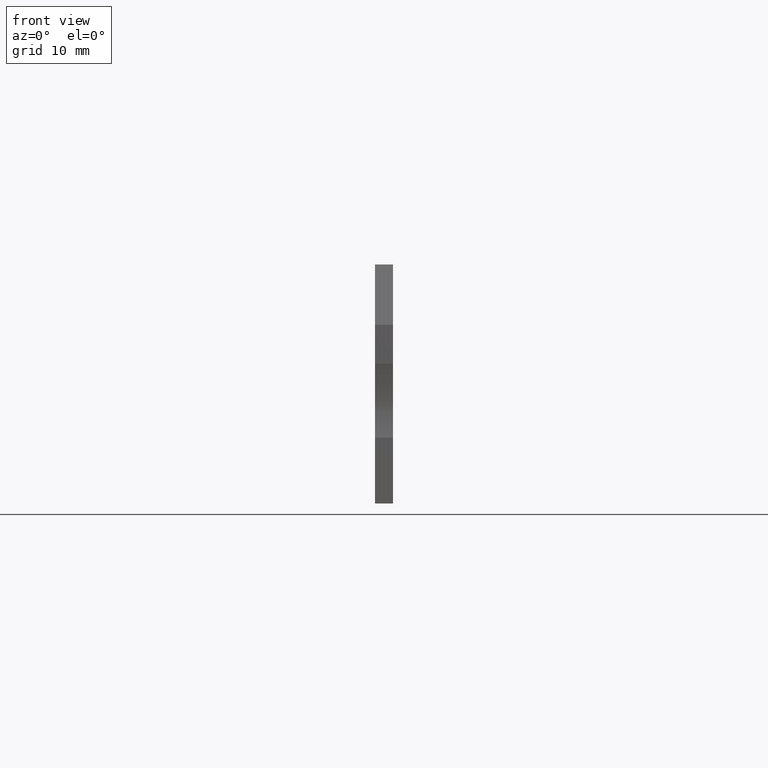
[diagram: clean part render]
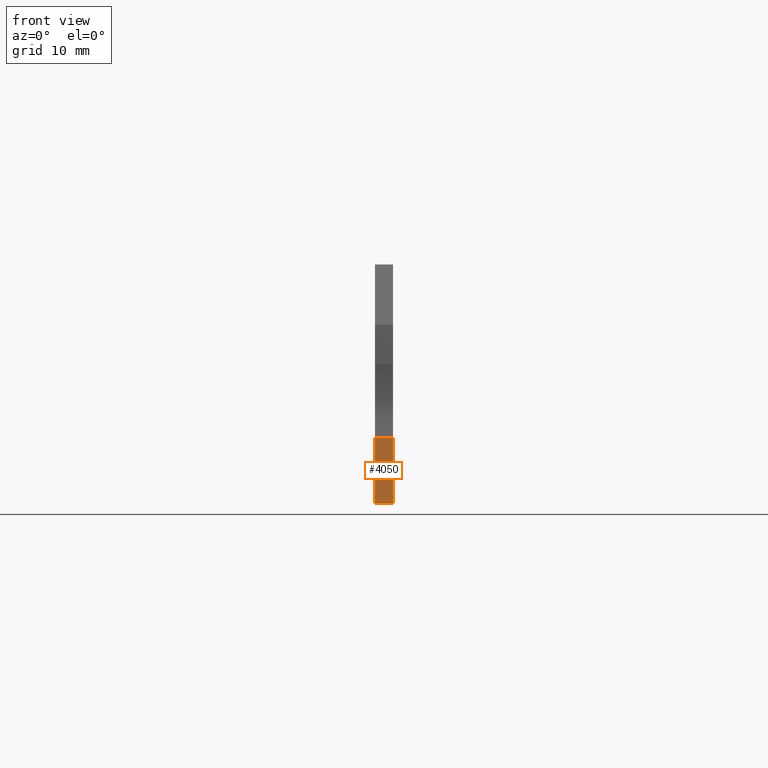
[diagram: same view with one face highlighted and labeled with its STEP entity id]
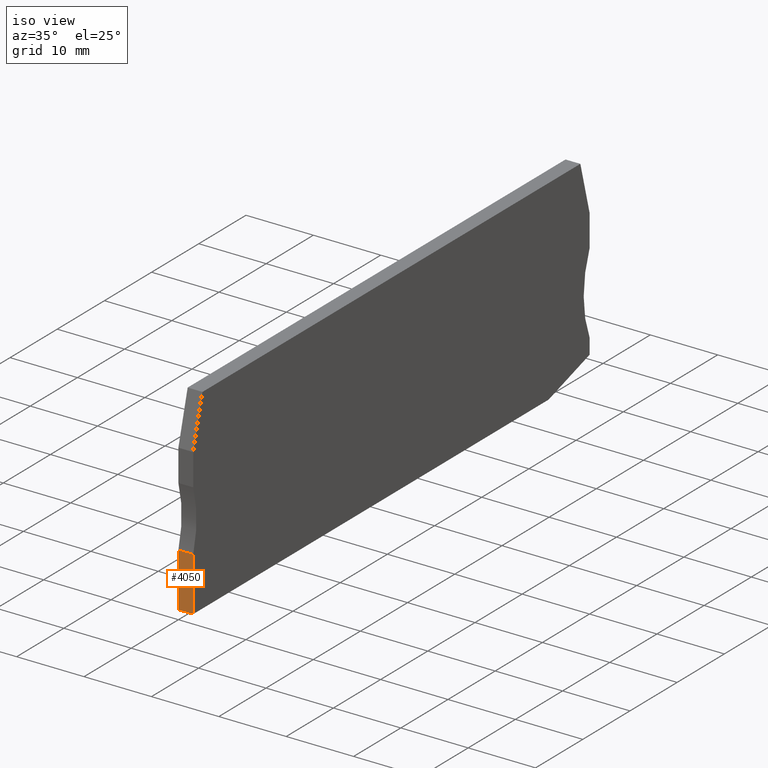
[diagram: same view with one face highlighted and labeled with its STEP entity id]
A machine part, front view. The second image highlights one B-rep face of the part: STEP entity #4050.
A second angle (iso view) of the same face is appended — the face is thin or edge-on in the first view.
In plain terms, the highlighted planar face has unit normal (-0, -1, 0).
Its self-contained STEP definition (entity closure, byte-faithful):
#1670=CARTESIAN_POINT('',(-34.1678327783247,-38.2000000000015,55.37));
#1680=VERTEX_POINT('',#1670);
#1710=CARTESIAN_POINT('',(-34.1678327783247,-12.1300507694265,55.37));
#1720=DIRECTION('',(0.,-1.,0.));
#1730=VECTOR('',#1720,1.);
#1740=LINE('',#1710,#1730);
#1750=CARTESIAN_POINT('',(-34.1678327783247,-30.2000000000027,55.37));
#1760=VERTEX_POINT('',#1750);
#1770=EDGE_CURVE('',#1760,#1680,#1740,.T.);
#2780=CARTESIAN_POINT('',(-34.1678327783247,-30.2000000000027,53.17));
#2790=VERTEX_POINT('',#2780);
#2820=CARTESIAN_POINT('',(-34.1678327783247,-12.1300507694265,53.17));
#2830=DIRECTION('',(0.,-1.,0.));
#2840=VECTOR('',#2830,1.);
#2850=LINE('',#2820,#2840);
#2860=CARTESIAN_POINT('',(-34.1678327783247,-38.2000000000015,53.17));
#2870=VERTEX_POINT('',#2860);
#2880=EDGE_CURVE('',#2790,#2870,#2850,.T.);
#3280=CARTESIAN_POINT('',(-34.1678327783247,-38.2000000000015,53.17));
#3290=DIRECTION('',(0.,0.,1.));
#3300=VECTOR('',#3290,1.);
#3310=LINE('',#3280,#3300);
#3320=EDGE_CURVE('',#2870,#1680,#3310,.T.);
#3890=CARTESIAN_POINT('',(-34.1678327783247,-38.2000000000015,53.17));
#3900=DIRECTION('',(-1.,0.,0.));
#3910=DIRECTION('',(0.,1.,0.));
#3920=AXIS2_PLACEMENT_3D('',#3890,#3900,#3910);
#3930=PLANE('',#3920);
#3940=ORIENTED_EDGE('',*,*,#3320,.T.);
#3950=ORIENTED_EDGE('',*,*,#2880,.T.);
#3960=CARTESIAN_POINT('',(-34.1678327783247,-30.2000000000027,53.17));
#3970=DIRECTION('',(0.,0.,1.));
#3980=VECTOR('',#3970,1.);
#3990=LINE('',#3960,#3980);
#4000=EDGE_CURVE('',#2790,#1760,#3990,.T.);
#4010=ORIENTED_EDGE('',*,*,#4000,.F.);
#4020=ORIENTED_EDGE('',*,*,#1770,.F.);
#4030=EDGE_LOOP('',(#4020,#4010,#3950,#3940));
#4040=FACE_OUTER_BOUND('',#4030,.T.);
#4050=ADVANCED_FACE('',(#4040),#3930,.T.);